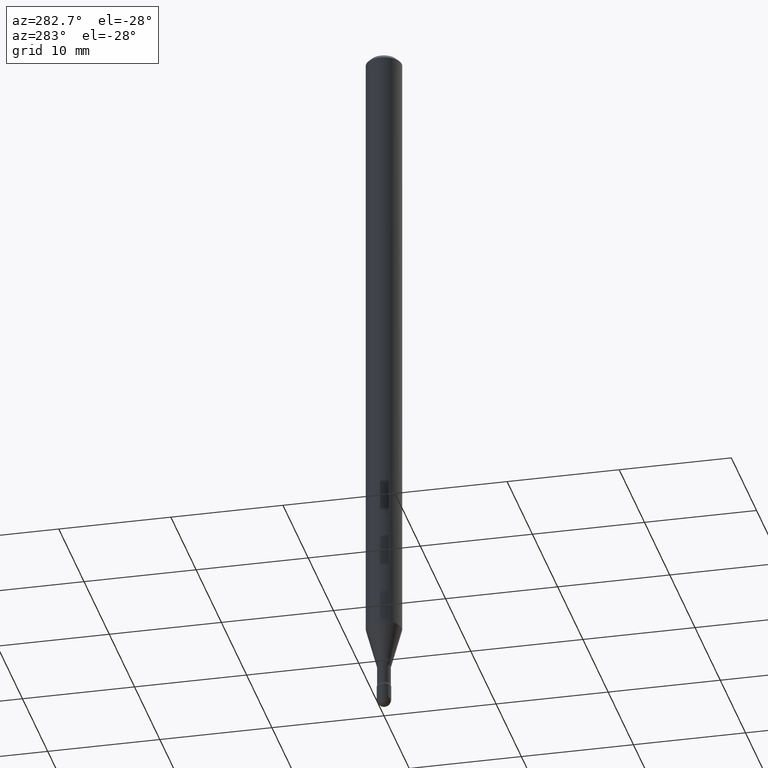
[diagram: clean part render]
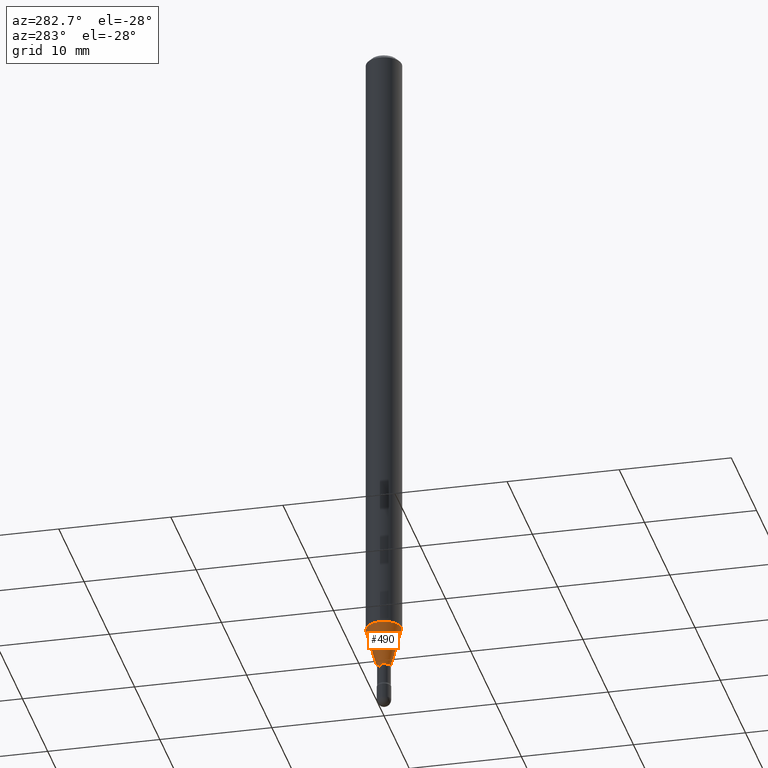
[diagram: same view with one face highlighted and labeled with its STEP entity id]
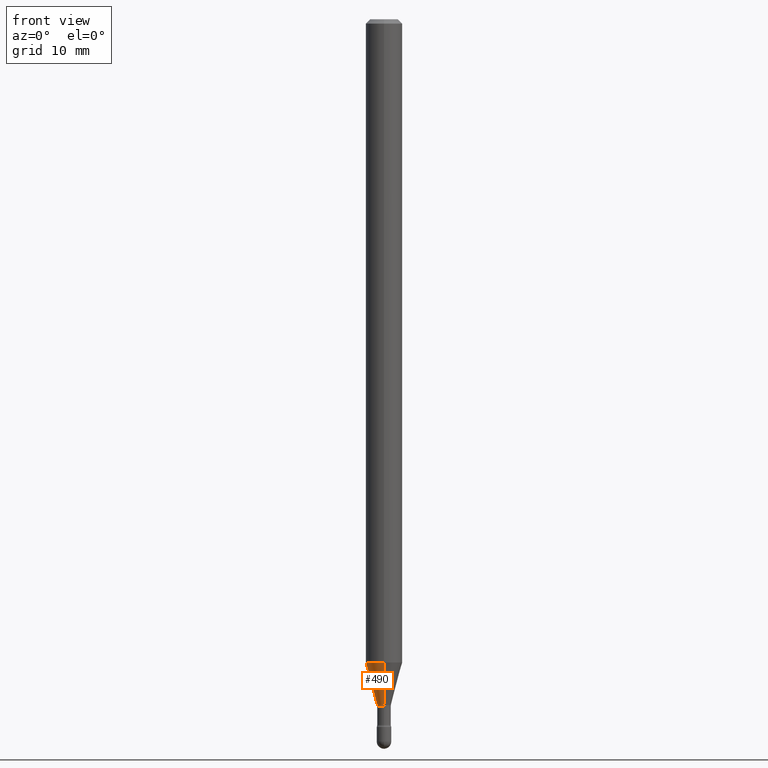
[diagram: same view with one face highlighted and labeled with its STEP entity id]
A machine part, auxiliary view. The second image highlights one B-rep face of the part: STEP entity #490.
A second angle (front view) of the same face is appended — the face is thin or edge-on in the first view.
In plain terms, the highlighted conical surface has half-angle 15 deg.
Its self-contained STEP definition (entity closure, byte-faithful):
#11 = DIRECTION ( 'NONE',  ( -6.982962677686265922E-15, -1.000000000000000000, 4.370956789862821150E-15 ) ) ;
#23 = ORIENTED_EDGE ( 'NONE', *, *, #491, .F. ) ;
#26 = EDGE_LOOP ( 'NONE', ( #422, #505, #365, #23 ) ) ;
#44 = DIRECTION ( 'NONE',  ( -1.807323732225330928E-15, -0.2588190451025182970, 0.9659258262890689783 ) ) ;
#48 = CARTESIAN_POINT ( 'NONE',  ( 5.390894942624073445E-29, -7.696823042483457732E-15, -2.204450018504814590 ) ) ;
#54 = EDGE_CURVE ( 'NONE', #196, #191, #459, .T. ) ;
#55 = VECTOR ( 'NONE', #341, 39.37007874015748143 ) ;
#82 = CIRCLE ( 'NONE', #502, 0.02401111260566398189 ) ;
#92 = CARTESIAN_POINT ( 'NONE',  ( 5.742166928912329898E-29, -8.198349847776076090E-15, -2.348092501787273356 ) ) ;
#100 = EDGE_CURVE ( 'NONE', #410, #146, #260, .T. ) ;
#126 = CARTESIAN_POINT ( 'NONE',  ( -1.676687031750163775E-16, -0.02401111260567218020, -2.348092501787273356 ) ) ;
#146 = VERTEX_POINT ( 'NONE', #440 ) ;
#171 = EDGE_CURVE ( 'NONE', #196, #410, #82, .T. ) ;
#191 = VERTEX_POINT ( 'NONE', #475 ) ;
#196 = VERTEX_POINT ( 'NONE', #554 ) ;
#232 = VECTOR ( 'NONE', #44, 39.37007874015748143 ) ;
#233 = CONICAL_SURFACE ( 'NONE', #421, 0.02401111260566398189, 0.2617993877991502960 ) ;
#238 = AXIS2_PLACEMENT_3D ( 'NONE', #48, #487, #11 ) ;
#259 = CARTESIAN_POINT ( 'NONE',  ( 5.742166928912329898E-29, -8.198349847776076090E-15, -2.348092501787273356 ) ) ;
#260 = LINE ( 'NONE', #126, #232 ) ;
#263 = CARTESIAN_POINT ( 'NONE',  ( 1.706092163947804984E-16, 0.02401111260565578012, -2.348092501787273356 ) ) ;
#319 = DIRECTION ( 'NONE',  ( -6.982962677686265133E-15, -1.000000000000000000, 0.000000000000000000 ) ) ;
#341 = DIRECTION ( 'NONE',  ( 1.839019923739601104E-15, 0.2588190451025250693, 0.9659258262890670910 ) ) ;
#365 = ORIENTED_EDGE ( 'NONE', *, *, #100, .T. ) ;
#386 = DIRECTION ( 'NONE',  ( -6.982962677686265133E-15, -1.000000000000000000, 0.000000000000000000 ) ) ;
#410 = VERTEX_POINT ( 'NONE', #551 ) ;
#421 = AXIS2_PLACEMENT_3D ( 'NONE', #92, #448, #319 ) ;
#422 = ORIENTED_EDGE ( 'NONE', *, *, #54, .F. ) ;
#425 = FACE_OUTER_BOUND ( 'NONE', #26, .T. ) ;
#440 = CARTESIAN_POINT ( 'NONE',  ( -4.364351673553378297E-16, -0.06250000000000771605, -2.204450018504814146 ) ) ;
#448 = DIRECTION ( 'NONE',  ( -2.445460272345158402E-29, 3.491493559787710048E-15, 1.000000000000000000 ) ) ;
#459 = LINE ( 'NONE', #263, #55 ) ;
#475 = CARTESIAN_POINT ( 'NONE',  ( 4.440892098501162587E-16, 0.06249999999999227007, -2.204450018504814590 ) ) ;
#479 = DIRECTION ( 'NONE',  ( -2.445460272345158402E-29, 3.491493559787710048E-15, 1.000000000000000000 ) ) ;
#487 = DIRECTION ( 'NONE',  ( -2.445460272345158402E-29, 3.491493559787710048E-15, 1.000000000000000000 ) ) ;
#490 = ADVANCED_FACE ( 'NONE', ( #425 ), #233, .T. ) ;
#491 = EDGE_CURVE ( 'NONE', #191, #146, #494, .T. ) ;
#494 = CIRCLE ( 'NONE', #238, 0.06250000000000000000 ) ;
#502 = AXIS2_PLACEMENT_3D ( 'NONE', #259, #479, #386 ) ;
#505 = ORIENTED_EDGE ( 'NONE', *, *, #171, .T. ) ;
#551 = CARTESIAN_POINT ( 'NONE',  ( -1.676687031750163775E-16, -0.02401111260567218020, -2.348092501787273356 ) ) ;
#554 = CARTESIAN_POINT ( 'NONE',  ( 3.073492131224485758E-16, 0.02401111260565577665, -2.348092501787273356 ) ) ;